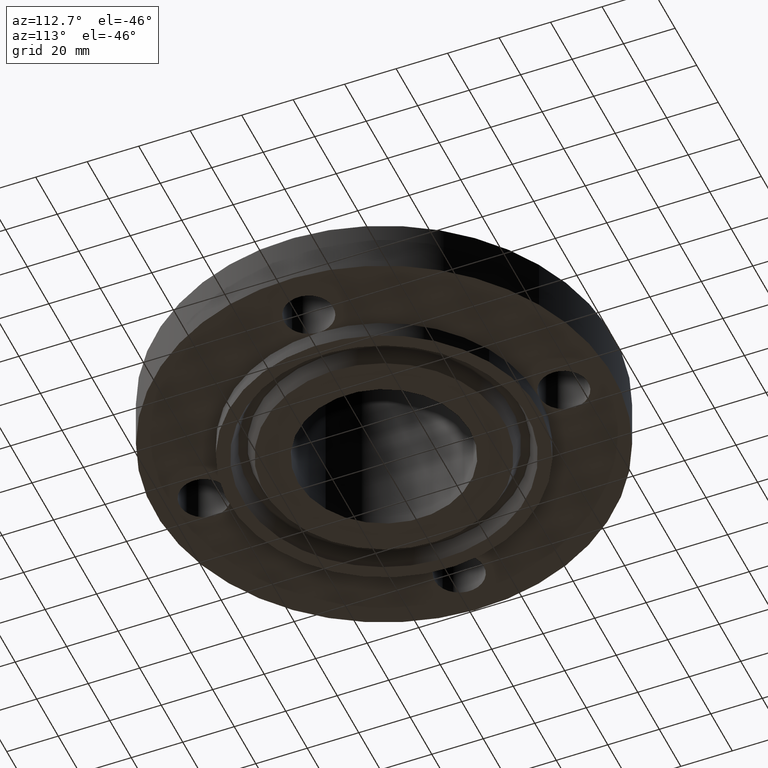
[diagram: clean part render]
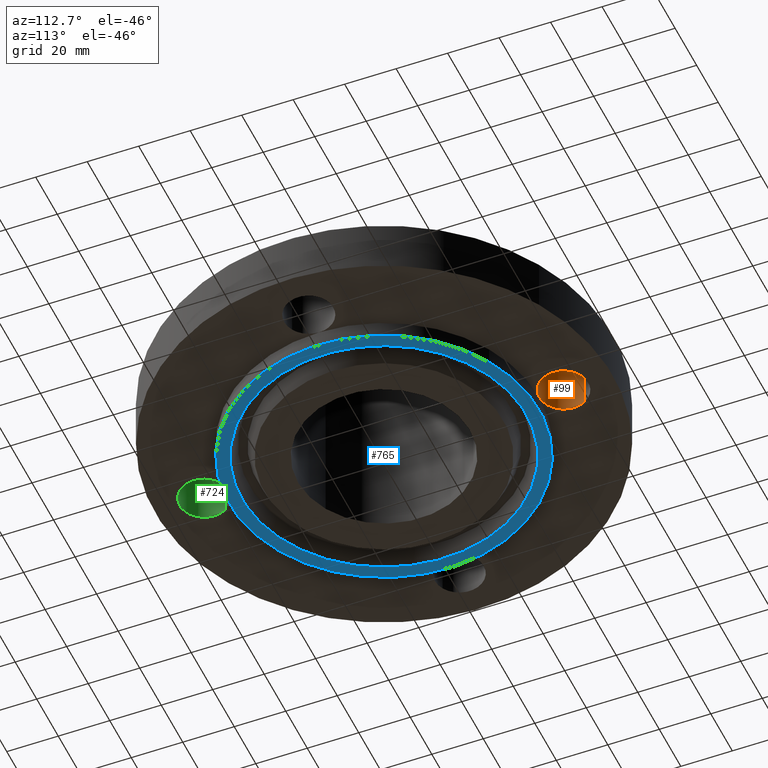
[diagram: same view with three faces highlighted in distinct colors, each labeled with its STEP entity id]
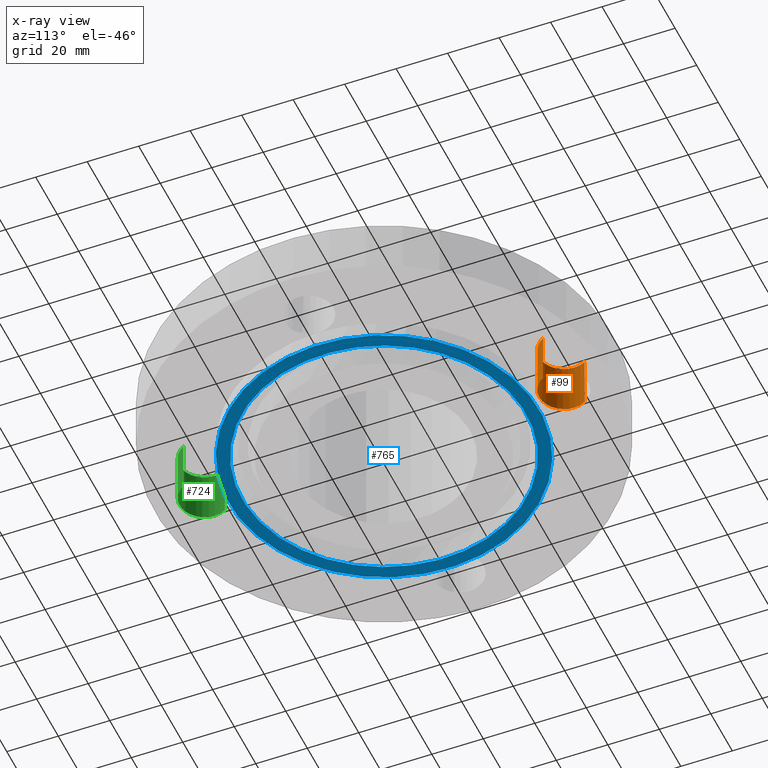
[diagram: x-ray of the same camera — body ghosted, the three highlighted faces saturated]
A machine part, auxiliary view with three faces highlighted in distinct colors.
The next image is the same camera in x-ray (body ghosted, the three faces saturated) — at least one of them is partly hidden behind the body in this view.
Their STEP definitions:

[orange] entity #99 — the highlighted cylindrical surface (edge-blend (fillet) strip) has radius 9.525 mm, axis along (0, -0, -1).
#38=AXIS2_PLACEMENT_3D('Cylinder Axis2P3D',#35,#36,#37) ;
#77=AXIS2_PLACEMENT_3D('Circle Axis2P3D',#75,#76,$) ;
#84=AXIS2_PLACEMENT_3D('Circle Axis2P3D',#82,#83,$) ;
#89=AXIS2_PLACEMENT_3D('Circle Axis2P3D',#87,#88,$) ;
#35=CARTESIAN_POINT('Axis2P3D Location',(0.,2.75000000001,0.806062992129)) ;
#40=CARTESIAN_POINT('Line Origine',(-0.32909346071,2.92978457699,0.405000000002)) ;
#44=CARTESIAN_POINT('Vertex',(-0.32909346071,2.92978457699,0.)) ;
#46=CARTESIAN_POINT('Vertex',(-0.32909346071,2.92978457699,0.810000000003)) ;
#53=CARTESIAN_POINT('Vertex',(0.32909346071,2.57021542303,0.)) ;
#56=CARTESIAN_POINT('Line Origine',(0.32909346071,2.57021542303,0.405000000002)) ;
#60=CARTESIAN_POINT('Vertex',(0.32909346071,2.57021542303,0.810000000003)) ;
#75=CARTESIAN_POINT('Axis2P3D Location',(0.,2.75000000001,0.)) ;
#79=CARTESIAN_POINT('Vertex',(-9.45568263898E-015,2.37500000001,2.79741234551E-016)) ;
#82=CARTESIAN_POINT('Axis2P3D Location',(0.,2.75000000001,0.)) ;
#87=CARTESIAN_POINT('Axis2P3D Location',(0.,2.75000000001,0.810000000003)) ;
#36=DIRECTION('Axis2P3D Direction',(0.,-0.,-0.0393700787402)) ;
#37=DIRECTION('Axis2P3D XDirection',(0.0345504945626,-0.0188750212049,0.)) ;
#41=DIRECTION('Vector Direction',(0.,0.,-0.0393700787402)) ;
#57=DIRECTION('Vector Direction',(0.,0.,-0.0393700787402)) ;
#76=DIRECTION('Axis2P3D Direction',(0.,-0.,-0.0393700787402)) ;
#83=DIRECTION('Axis2P3D Direction',(0.,-0.,-0.0393700787402)) ;
#88=DIRECTION('Axis2P3D Direction',(0.,-0.,-0.0393700787402)) ;
#42=VECTOR('Line Direction',#41,0.0393700787402) ;
#58=VECTOR('Line Direction',#57,0.0393700787402) ;
#93=ORIENTED_EDGE('',*,*,#62,.F.) ;
#94=ORIENTED_EDGE('',*,*,#81,.T.) ;
#95=ORIENTED_EDGE('',*,*,#86,.T.) ;
#96=ORIENTED_EDGE('',*,*,#48,.T.) ;
#97=ORIENTED_EDGE('',*,*,#91,.F.) ;
#99=ADVANCED_FACE('PartBody',(#98),#39,.F.) ;
#78=CIRCLE('generated circle',#77,0.375000000001) ;
#85=CIRCLE('generated circle',#84,0.375000000001) ;
#90=CIRCLE('generated circle',#89,0.375000000001) ;
#39=CYLINDRICAL_SURFACE('generated cylinder',#38,0.375000000001) ;
#48=EDGE_CURVE('',#45,#47,#43,.F.) ;
#62=EDGE_CURVE('',#54,#61,#59,.F.) ;
#81=EDGE_CURVE('',#54,#80,#78,.T.) ;
#86=EDGE_CURVE('',#80,#45,#85,.T.) ;
#91=EDGE_CURVE('',#61,#47,#90,.T.) ;
#92=EDGE_LOOP('',(#93,#94,#95,#96,#97)) ;
#98=FACE_OUTER_BOUND('',#92,.T.) ;
#43=LINE('Line',#40,#42) ;
#59=LINE('Line',#56,#58) ;
#45=VERTEX_POINT('',#44) ;
#47=VERTEX_POINT('',#46) ;
#54=VERTEX_POINT('',#53) ;
#61=VERTEX_POINT('',#60) ;
#80=VERTEX_POINT('',#79) ;

[blue] entity #765 — the highlighted planar face has unit normal (0, 0, -1).
#439=AXIS2_PLACEMENT_3D('Circle Axis2P3D',#437,#438,$) ;
#488=AXIS2_PLACEMENT_3D('Circle Axis2P3D',#486,#487,$) ;
#741=AXIS2_PLACEMENT_3D('Plane Axis2P3D',#738,#739,#740) ;
#749=AXIS2_PLACEMENT_3D('Circle Axis2P3D',#747,#748,$) ;
#758=AXIS2_PLACEMENT_3D('Circle Axis2P3D',#756,#757,$) ;
#437=CARTESIAN_POINT('Axis2P3D Location',(0.,0.,-0.250000000001)) ;
#441=CARTESIAN_POINT('Vertex',(-1.13863565419,-2.0842585845,-0.250000000001)) ;
#443=CARTESIAN_POINT('Vertex',(1.13863565419,2.0842585845,-0.250000000001)) ;
#486=CARTESIAN_POINT('Axis2P3D Location',(0.,0.,-0.250000000001)) ;
#738=CARTESIAN_POINT('Axis2P3D Location',(0.,1.31750000001,-0.250000000001)) ;
#747=CARTESIAN_POINT('Axis2P3D Location',(0.,2.79741234551E-016,-0.250000000001)) ;
#751=CARTESIAN_POINT('Vertex',(1.04125234166,-1.90599962661,-0.250000000001)) ;
#753=CARTESIAN_POINT('Vertex',(-1.04125234166,1.90599962661,-0.250000000001)) ;
#756=CARTESIAN_POINT('Axis2P3D Location',(-6.99353086378E-017,2.79741234551E-016,-0.250000000001)) ;
#438=DIRECTION('Axis2P3D Direction',(0.,0.,-0.0393700787402)) ;
#487=DIRECTION('Axis2P3D Direction',(0.,0.,-0.0393700787402)) ;
#739=DIRECTION('Axis2P3D Direction',(0.,0.,-0.0393700787402)) ;
#740=DIRECTION('Axis2P3D XDirection',(0.0393700787402,0.,0.)) ;
#748=DIRECTION('Axis2P3D Direction',(0.,0.,-0.0393700787402)) ;
#757=DIRECTION('Axis2P3D Direction',(0.,0.,-0.0393700787402)) ;
#744=ORIENTED_EDGE('',*,*,#445,.T.) ;
#745=ORIENTED_EDGE('',*,*,#490,.T.) ;
#762=ORIENTED_EDGE('',*,*,#755,.F.) ;
#763=ORIENTED_EDGE('',*,*,#760,.F.) ;
#764=FACE_BOUND('',#761,.T.) ;
#765=ADVANCED_FACE('PartBody',(#746,#764),#742,.T.) ;
#440=CIRCLE('generated circle',#439,2.37500000001) ;
#489=CIRCLE('generated circle',#488,2.37500000001) ;
#750=CIRCLE('generated circle',#749,2.17187500001) ;
#759=CIRCLE('generated circle',#758,2.17187500001) ;
#445=EDGE_CURVE('',#442,#444,#440,.T.) ;
#490=EDGE_CURVE('',#444,#442,#489,.T.) ;
#755=EDGE_CURVE('',#752,#754,#750,.T.) ;
#760=EDGE_CURVE('',#754,#752,#759,.T.) ;
#743=EDGE_LOOP('',(#744,#745)) ;
#761=EDGE_LOOP('',(#762,#763)) ;
#746=FACE_OUTER_BOUND('',#743,.T.) ;
#742=PLANE('',#741) ;
#442=VERTEX_POINT('',#441) ;
#444=VERTEX_POINT('',#443) ;
#752=VERTEX_POINT('',#751) ;
#754=VERTEX_POINT('',#753) ;

[green] entity #724 — the highlighted cylindrical surface (edge-blend (fillet) strip) has radius 9.525 mm, axis along (-0, 0, -1).
#537=AXIS2_PLACEMENT_3D('Circle Axis2P3D',#535,#536,$) ;
#697=AXIS2_PLACEMENT_3D('Cylinder Axis2P3D',#694,#695,#696) ;
#715=AXIS2_PLACEMENT_3D('Circle Axis2P3D',#713,#714,$) ;
#532=CARTESIAN_POINT('Vertex',(-0.32909346071,-2.57021542303,0.)) ;
#535=CARTESIAN_POINT('Axis2P3D Location',(3.75902283928E-016,-2.75000000001,0.)) ;
#539=CARTESIAN_POINT('Vertex',(0.32909346071,-2.92978457699,0.)) ;
#694=CARTESIAN_POINT('Axis2P3D Location',(3.36777869767E-016,-2.75000000001,0.806062992129)) ;
#699=CARTESIAN_POINT('Line Origine',(0.32909346071,-2.92978457699,0.405000000002)) ;
#703=CARTESIAN_POINT('Vertex',(0.32909346071,-2.92978457699,0.810000000003)) ;
#706=CARTESIAN_POINT('Line Origine',(-0.32909346071,-2.57021542303,0.405000000002)) ;
#710=CARTESIAN_POINT('Vertex',(-0.32909346071,-2.57021542303,0.810000000003)) ;
#713=CARTESIAN_POINT('Axis2P3D Location',(3.36777869767E-016,-2.75000000001,0.810000000003)) ;
#536=DIRECTION('Axis2P3D Direction',(0.,0.,-0.0393700787402)) ;
#695=DIRECTION('Axis2P3D Direction',(-0.,0.,-0.0393700787402)) ;
#696=DIRECTION('Axis2P3D XDirection',(-0.0345504945626,0.0188750212049,0.)) ;
#700=DIRECTION('Vector Direction',(0.,0.,-0.0393700787402)) ;
#707=DIRECTION('Vector Direction',(0.,0.,-0.0393700787402)) ;
#714=DIRECTION('Axis2P3D Direction',(-0.,0.,-0.0393700787402)) ;
#701=VECTOR('Line Direction',#700,0.0393700787402) ;
#708=VECTOR('Line Direction',#707,0.0393700787402) ;
#719=ORIENTED_EDGE('',*,*,#705,.F.) ;
#720=ORIENTED_EDGE('',*,*,#541,.T.) ;
#721=ORIENTED_EDGE('',*,*,#712,.T.) ;
#722=ORIENTED_EDGE('',*,*,#717,.F.) ;
#724=ADVANCED_FACE('PartBody',(#723),#698,.F.) ;
#538=CIRCLE('generated circle',#537,0.375000000001) ;
#716=CIRCLE('generated circle',#715,0.375000000001) ;
#698=CYLINDRICAL_SURFACE('generated cylinder',#697,0.375000000001) ;
#541=EDGE_CURVE('',#540,#533,#538,.T.) ;
#705=EDGE_CURVE('',#540,#704,#702,.F.) ;
#712=EDGE_CURVE('',#533,#711,#709,.F.) ;
#717=EDGE_CURVE('',#704,#711,#716,.T.) ;
#718=EDGE_LOOP('',(#719,#720,#721,#722)) ;
#723=FACE_OUTER_BOUND('',#718,.T.) ;
#702=LINE('Line',#699,#701) ;
#709=LINE('Line',#706,#708) ;
#533=VERTEX_POINT('',#532) ;
#540=VERTEX_POINT('',#539) ;
#704=VERTEX_POINT('',#703) ;
#711=VERTEX_POINT('',#710) ;